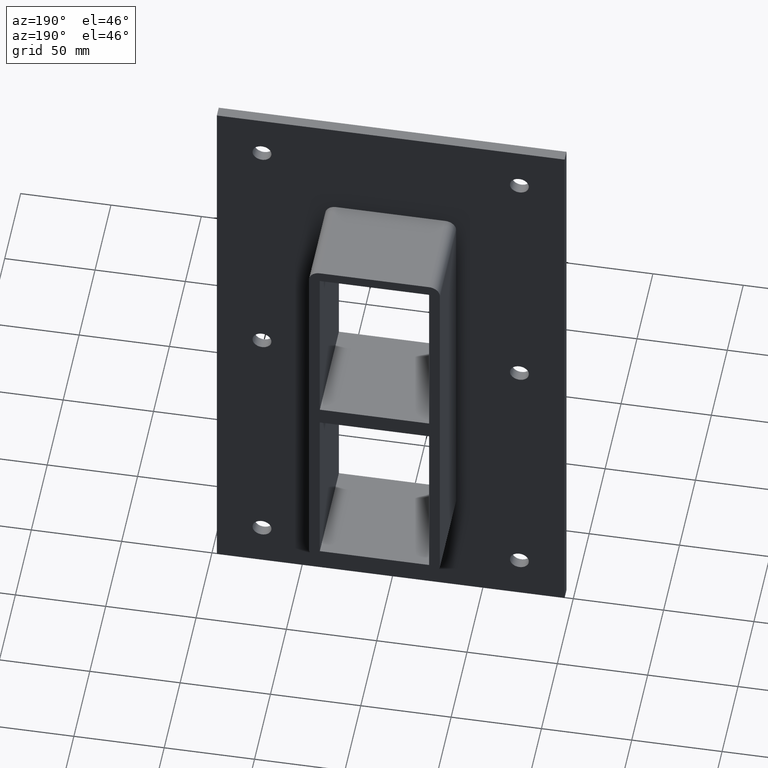
[diagram: clean part render]
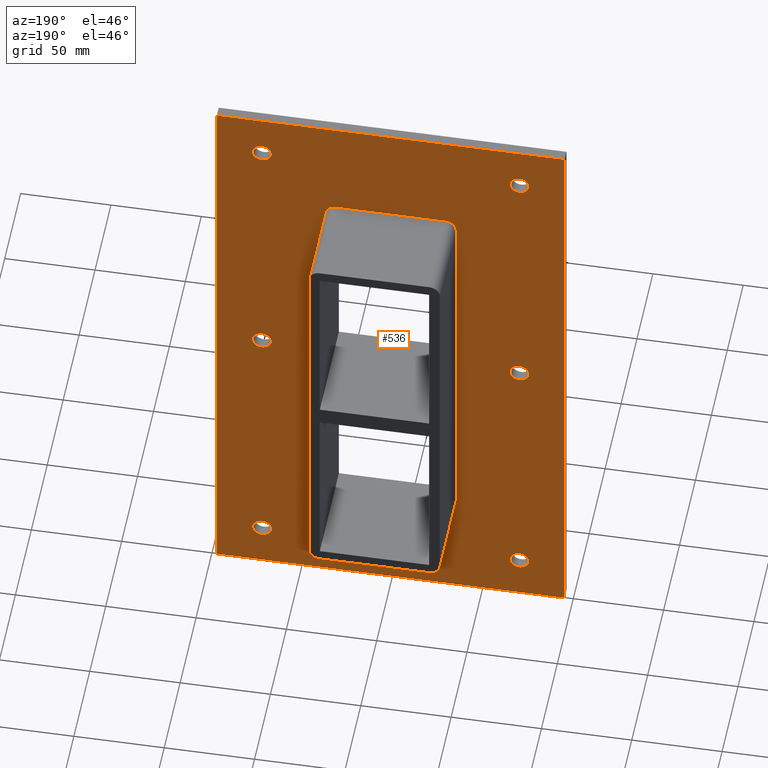
[diagram: same view with one face highlighted and labeled with its STEP entity id]
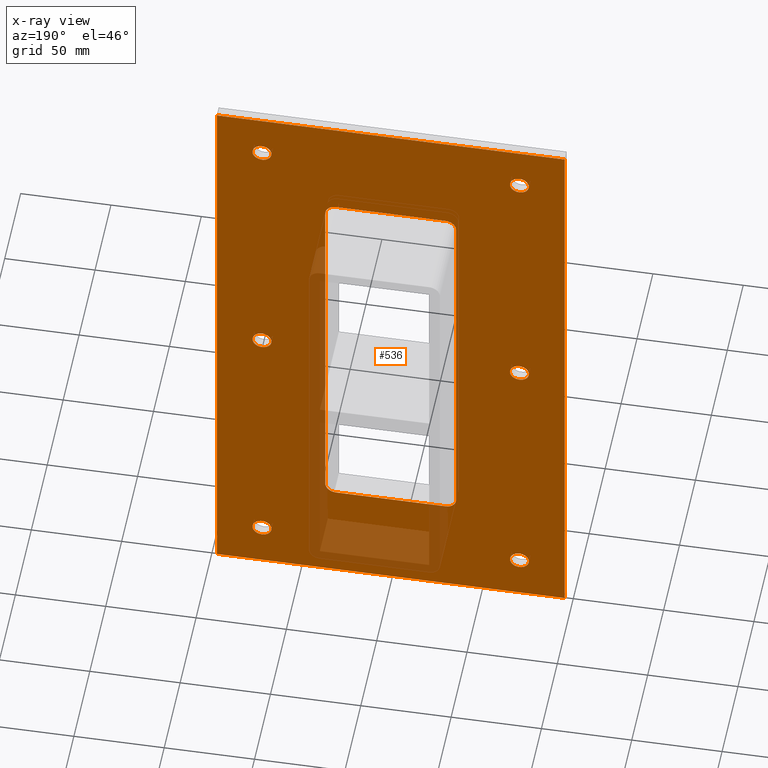
[diagram: x-ray of the same camera — body ghosted, the highlighted face saturated]
A machine part, auxiliary view. The second image highlights one B-rep face of the part: STEP entity #536.
The next image is the same camera in x-ray: the body ghosted, the highlighted face saturated — about 9% of this face is hidden behind the body in this view.
In plain terms, the highlighted planar face has unit normal (0, 1, 0).
Its self-contained STEP definition (entity closure, byte-faithful):
#73=CARTESIAN_POINT('',(-76.500000000000071,6.000000000000014,-147.0));
#74=VERTEX_POINT('',#73);
#75=CARTESIAN_POINT('',(-71.250000000000071,6.000000000000014,-147.0));
#76=DIRECTION('',(0.0,-1.0,0.0));
#77=DIRECTION('',(1.0,0.0,0.0));
#78=AXIS2_PLACEMENT_3D('',#75,#76,#77);
#79=CIRCLE('',#78,5.25);
#80=EDGE_CURVE('',#74,#74,#79,.T.);
#101=CARTESIAN_POINT('',(65.999999999999929,6.000000000000014,1.776357E-014));
#102=VERTEX_POINT('',#101);
#103=CARTESIAN_POINT('',(71.249999999999929,6.000000000000014,1.776357E-014));
#104=DIRECTION('',(0.0,-1.0,0.0));
#105=DIRECTION('',(1.0,0.0,0.0));
#106=AXIS2_PLACEMENT_3D('',#103,#104,#105);
#107=CIRCLE('',#106,5.25);
#108=EDGE_CURVE('',#102,#102,#107,.T.);
#129=CARTESIAN_POINT('',(-76.500000000000071,6.000000000000014,1.776357E-014));
#130=VERTEX_POINT('',#129);
#131=CARTESIAN_POINT('',(-71.250000000000071,6.000000000000014,1.776357E-014));
#132=DIRECTION('',(0.0,-1.0,0.0));
#133=DIRECTION('',(1.0,0.0,0.0));
#134=AXIS2_PLACEMENT_3D('',#131,#132,#133);
#135=CIRCLE('',#134,5.25);
#136=EDGE_CURVE('',#130,#130,#135,.T.);
#157=CARTESIAN_POINT('',(65.999999999999929,6.000000000000014,-147.0));
#158=VERTEX_POINT('',#157);
#159=CARTESIAN_POINT('',(71.249999999999929,6.000000000000014,-147.0));
#160=DIRECTION('',(0.0,-1.0,0.0));
#161=DIRECTION('',(1.0,0.0,0.0));
#162=AXIS2_PLACEMENT_3D('',#159,#160,#161);
#163=CIRCLE('',#162,5.25);
#164=EDGE_CURVE('',#158,#158,#163,.T.);
#185=CARTESIAN_POINT('',(-76.500000000000071,6.000000000000014,147.00000000000003));
#186=VERTEX_POINT('',#185);
#187=CARTESIAN_POINT('',(-71.250000000000071,6.000000000000014,147.00000000000003));
#188=DIRECTION('',(0.0,-1.0,0.0));
#189=DIRECTION('',(1.0,0.0,0.0));
#190=AXIS2_PLACEMENT_3D('',#187,#188,#189);
#191=CIRCLE('',#190,5.25);
#192=EDGE_CURVE('',#186,#186,#191,.T.);
#213=CARTESIAN_POINT('',(65.999999999999929,6.000000000000014,147.00000000000003));
#214=VERTEX_POINT('',#213);
#215=CARTESIAN_POINT('',(71.249999999999929,6.000000000000014,147.00000000000003));
#216=DIRECTION('',(0.0,-1.0,0.0));
#217=DIRECTION('',(1.0,0.0,0.0));
#218=AXIS2_PLACEMENT_3D('',#215,#216,#217);
#219=CIRCLE('',#218,5.25);
#220=EDGE_CURVE('',#214,#214,#219,.T.);
#409=CARTESIAN_POINT('',(7.946424E-015,6.000000000000001,-1.536309E-014));
#410=DIRECTION('',(0.0,1.0,0.0));
#411=DIRECTION('',(0.0,0.0,1.0));
#412=AXIS2_PLACEMENT_3D('',#409,#410,#411);
#413=PLANE('',#412);
#414=CARTESIAN_POINT('',(-96.249999999999972,6.000000000000001,171.99999999999994));
#415=VERTEX_POINT('',#414);
#416=CARTESIAN_POINT('',(96.249999999999972,6.000000000000001,171.99999999999994));
#417=VERTEX_POINT('',#416);
#418=CARTESIAN_POINT('',(-96.249999999999972,6.000000000000001,171.99999999999994));
#419=DIRECTION('',(1.0,0.0,0.0));
#420=VECTOR('',#419,192.49999999999994);
#421=LINE('',#418,#420);
#422=EDGE_CURVE('',#415,#417,#421,.T.);
#423=ORIENTED_EDGE('',*,*,#422,.T.);
#424=CARTESIAN_POINT('',(96.249999999999972,6.000000000000001,-171.99999999999994));
#425=VERTEX_POINT('',#424);
#426=CARTESIAN_POINT('',(96.249999999999986,6.000000000000001,171.99999999999994));
#427=DIRECTION('',(0.0,0.0,-1.0));
#428=VECTOR('',#427,343.99999999999989);
#429=LINE('',#426,#428);
#430=EDGE_CURVE('',#417,#425,#429,.T.);
#431=ORIENTED_EDGE('',*,*,#430,.T.);
#432=CARTESIAN_POINT('',(-96.249999999999972,6.000000000000001,-171.99999999999994));
#433=VERTEX_POINT('',#432);
#434=CARTESIAN_POINT('',(96.249999999999986,6.000000000000001,-172.0));
#435=DIRECTION('',(-1.0,0.0,0.0));
#436=VECTOR('',#435,192.49999999999994);
#437=LINE('',#434,#436);
#438=EDGE_CURVE('',#425,#433,#437,.T.);
#439=ORIENTED_EDGE('',*,*,#438,.T.);
#440=CARTESIAN_POINT('',(-96.249999999999972,6.000000000000001,-172.0));
#441=DIRECTION('',(0.0,0.0,1.0));
#442=VECTOR('',#441,343.99999999999989);
#443=LINE('',#440,#442);
#444=EDGE_CURVE('',#433,#415,#443,.T.);
#445=ORIENTED_EDGE('',*,*,#444,.T.);
#446=EDGE_LOOP('',(#423,#431,#439,#445));
#447=FACE_OUTER_BOUND('',#446,.T.);
#448=ORIENTED_EDGE('',*,*,#80,.T.);
#449=EDGE_LOOP('',(#448));
#450=FACE_BOUND('',#449,.T.);
#451=ORIENTED_EDGE('',*,*,#108,.T.);
#452=EDGE_LOOP('',(#451));
#453=FACE_BOUND('',#452,.T.);
#454=ORIENTED_EDGE('',*,*,#136,.T.);
#455=EDGE_LOOP('',(#454));
#456=FACE_BOUND('',#455,.T.);
#457=ORIENTED_EDGE('',*,*,#164,.T.);
#458=EDGE_LOOP('',(#457));
#459=FACE_BOUND('',#458,.T.);
#460=ORIENTED_EDGE('',*,*,#192,.T.);
#461=EDGE_LOOP('',(#460));
#462=FACE_BOUND('',#461,.T.);
#463=ORIENTED_EDGE('',*,*,#220,.T.);
#464=EDGE_LOOP('',(#463));
#465=FACE_BOUND('',#464,.T.);
#466=CARTESIAN_POINT('',(-36.25,6.000000000000001,106.00000000000001));
#467=VERTEX_POINT('',#466);
#468=CARTESIAN_POINT('',(-30.250000000000004,6.000000000000001,112.00000000000003));
#469=VERTEX_POINT('',#468);
#470=CARTESIAN_POINT('',(-30.250000000000004,6.000000000000001,106.00000000000001));
#471=DIRECTION('',(0.0,1.0,0.0));
#472=DIRECTION('',(-0.707106781186546,0.0,0.707106781186549));
#473=AXIS2_PLACEMENT_3D('',#470,#471,#472);
#474=CIRCLE('',#473,6.000000000000001);
#475=EDGE_CURVE('',#467,#469,#474,.T.);
#476=ORIENTED_EDGE('',*,*,#475,.F.);
#477=CARTESIAN_POINT('',(-36.25,6.000000000000001,-106.00000000000001));
#478=VERTEX_POINT('',#477);
#479=CARTESIAN_POINT('',(-36.25,6.000000000000001,-106.00000000000001));
#480=DIRECTION('',(0.0,0.0,1.0));
#481=VECTOR('',#480,212.0);
#482=LINE('',#479,#481);
#483=EDGE_CURVE('',#478,#467,#482,.T.);
#484=ORIENTED_EDGE('',*,*,#483,.F.);
#485=CARTESIAN_POINT('',(-30.250000000000004,6.000000000000001,-112.00000000000003));
#486=VERTEX_POINT('',#485);
#487=CARTESIAN_POINT('',(-30.250000000000004,6.000000000000001,-106.00000000000001));
#488=DIRECTION('',(0.0,1.0,0.0));
#489=DIRECTION('',(-0.707106781186546,0.0,-0.707106781186549));
#490=AXIS2_PLACEMENT_3D('',#487,#488,#489);
#491=CIRCLE('',#490,6.000000000000001);
#492=EDGE_CURVE('',#486,#478,#491,.T.);
#493=ORIENTED_EDGE('',*,*,#492,.F.);
#494=CARTESIAN_POINT('',(30.250000000000004,6.000000000000001,-112.00000000000003));
#495=VERTEX_POINT('',#494);
#496=CARTESIAN_POINT('',(30.250000000000004,6.000000000000001,-112.00000000000003));
#497=DIRECTION('',(-1.0,0.0,0.0));
#498=VECTOR('',#497,60.5);
#499=LINE('',#496,#498);
#500=EDGE_CURVE('',#495,#486,#499,.T.);
#501=ORIENTED_EDGE('',*,*,#500,.F.);
#502=CARTESIAN_POINT('',(36.25,6.000000000000001,-106.00000000000001));
#503=VERTEX_POINT('',#502);
#504=CARTESIAN_POINT('',(30.250000000000004,6.000000000000001,-106.00000000000001));
#505=DIRECTION('',(0.0,1.0,0.0));
#506=DIRECTION('',(0.707106781186546,0.0,-0.707106781186549));
#507=AXIS2_PLACEMENT_3D('',#504,#505,#506);
#508=CIRCLE('',#507,6.000000000000001);
#509=EDGE_CURVE('',#503,#495,#508,.T.);
#510=ORIENTED_EDGE('',*,*,#509,.F.);
#511=CARTESIAN_POINT('',(36.25,6.000000000000001,106.00000000000003));
#512=VERTEX_POINT('',#511);
#513=CARTESIAN_POINT('',(36.25,6.000000000000001,106.00000000000003));
#514=DIRECTION('',(0.0,0.0,-1.0));
#515=VECTOR('',#514,212.00000000000006);
#516=LINE('',#513,#515);
#517=EDGE_CURVE('',#512,#503,#516,.T.);
#518=ORIENTED_EDGE('',*,*,#517,.F.);
#519=CARTESIAN_POINT('',(30.250000000000004,6.000000000000001,112.00000000000003));
#520=VERTEX_POINT('',#519);
#521=CARTESIAN_POINT('',(30.250000000000004,6.000000000000001,106.00000000000003));
#522=DIRECTION('',(0.0,1.0,0.0));
#523=DIRECTION('',(0.707106781186548,0.0,0.707106781186547));
#524=AXIS2_PLACEMENT_3D('',#521,#522,#523);
#525=CIRCLE('',#524,6.0);
#526=EDGE_CURVE('',#520,#512,#525,.T.);
#527=ORIENTED_EDGE('',*,*,#526,.F.);
#528=CARTESIAN_POINT('',(-30.250000000000004,6.000000000000001,112.00000000000003));
#529=DIRECTION('',(1.0,0.0,0.0));
#530=VECTOR('',#529,60.500000000000007);
#531=LINE('',#528,#530);
#532=EDGE_CURVE('',#469,#520,#531,.T.);
#533=ORIENTED_EDGE('',*,*,#532,.F.);
#534=EDGE_LOOP('',(#476,#484,#493,#501,#510,#518,#527,#533));
#535=FACE_BOUND('',#534,.T.);
#536=ADVANCED_FACE('',(#447,#450,#453,#456,#459,#462,#465,#535),#413,.T.);